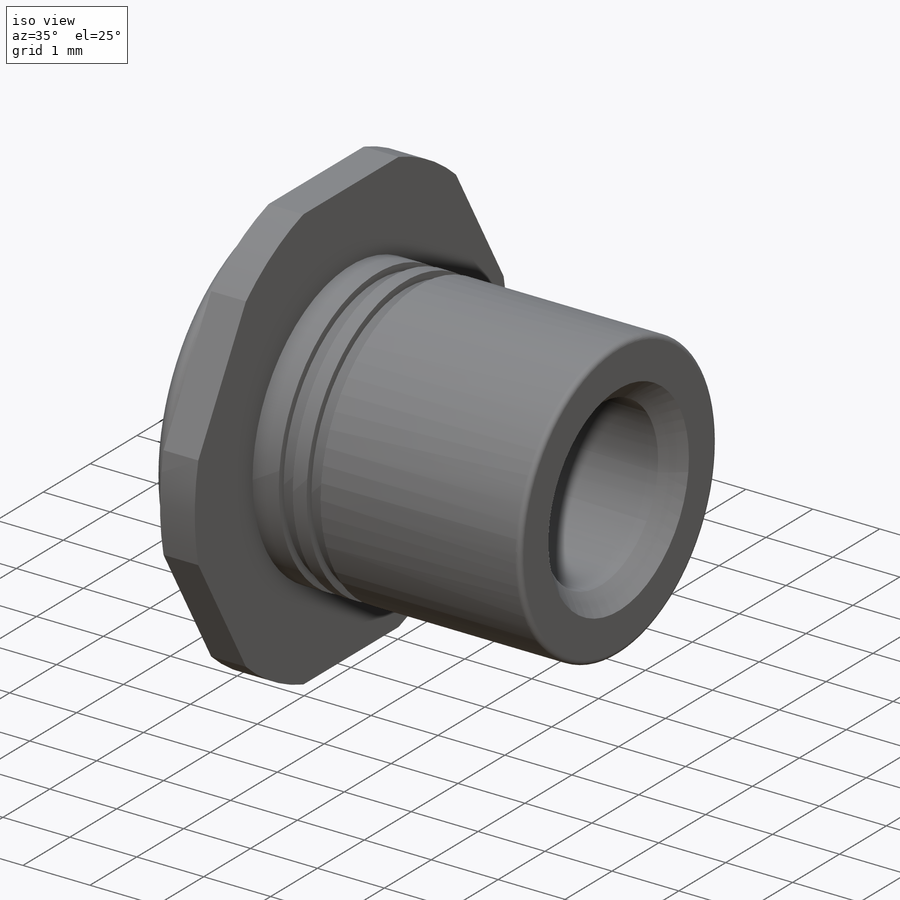
[diagram: iso view]
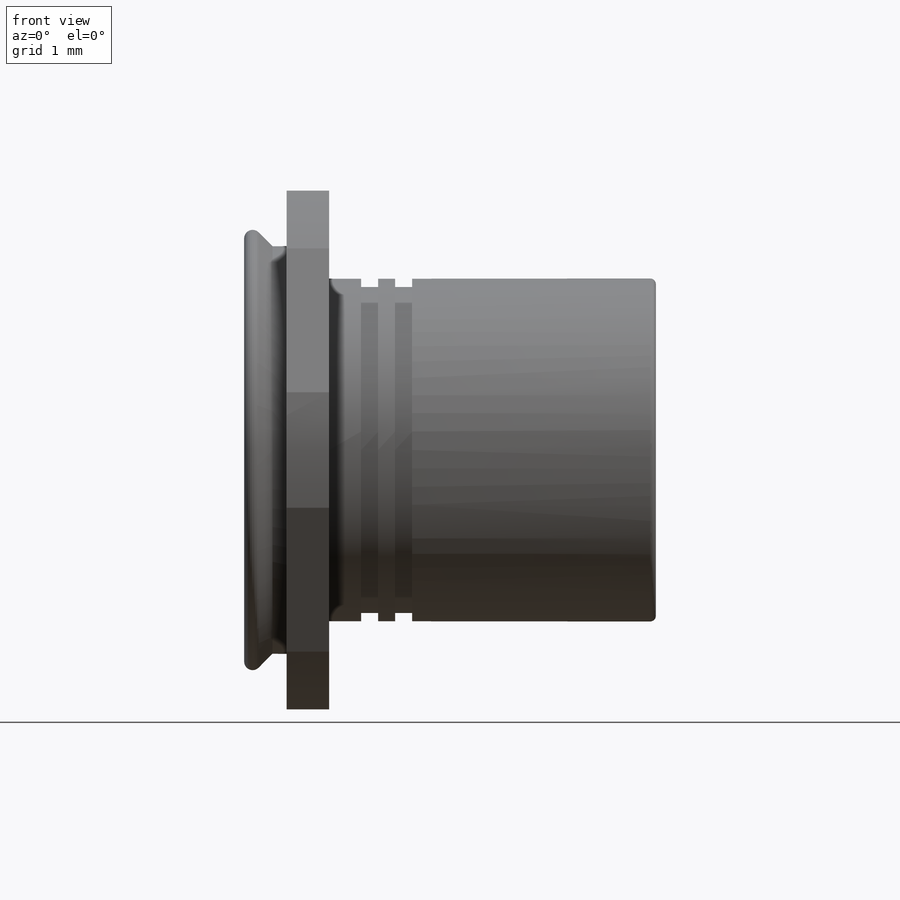
[diagram: front view]
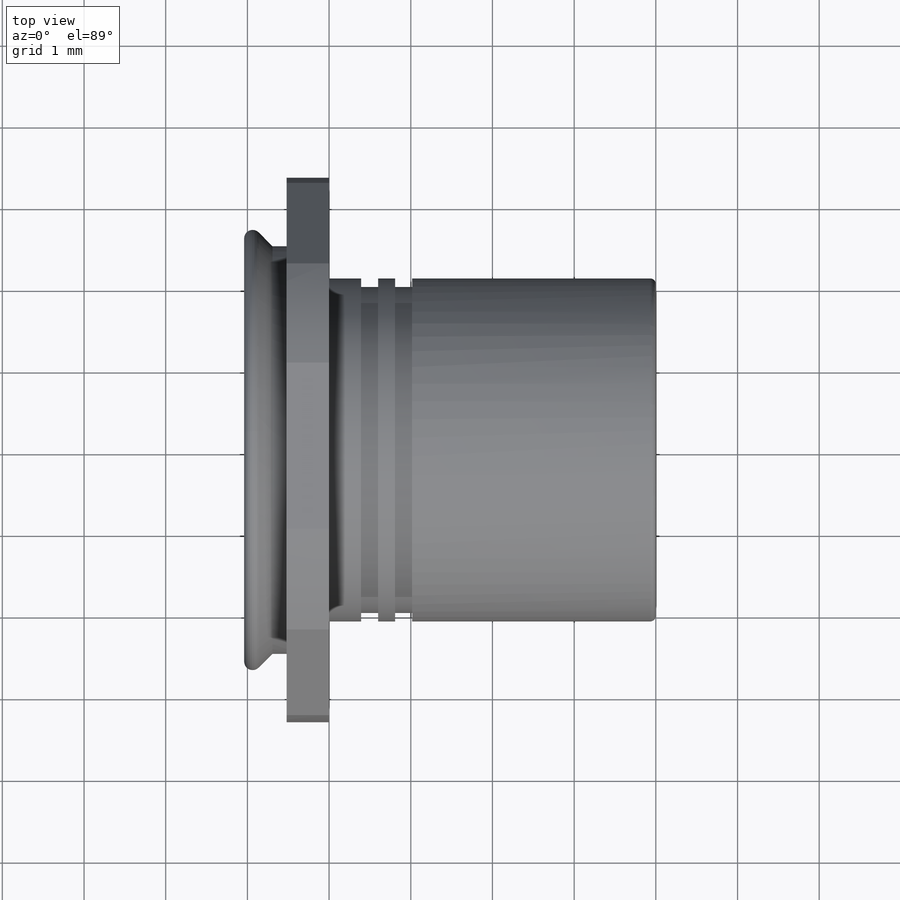
[diagram: top view]
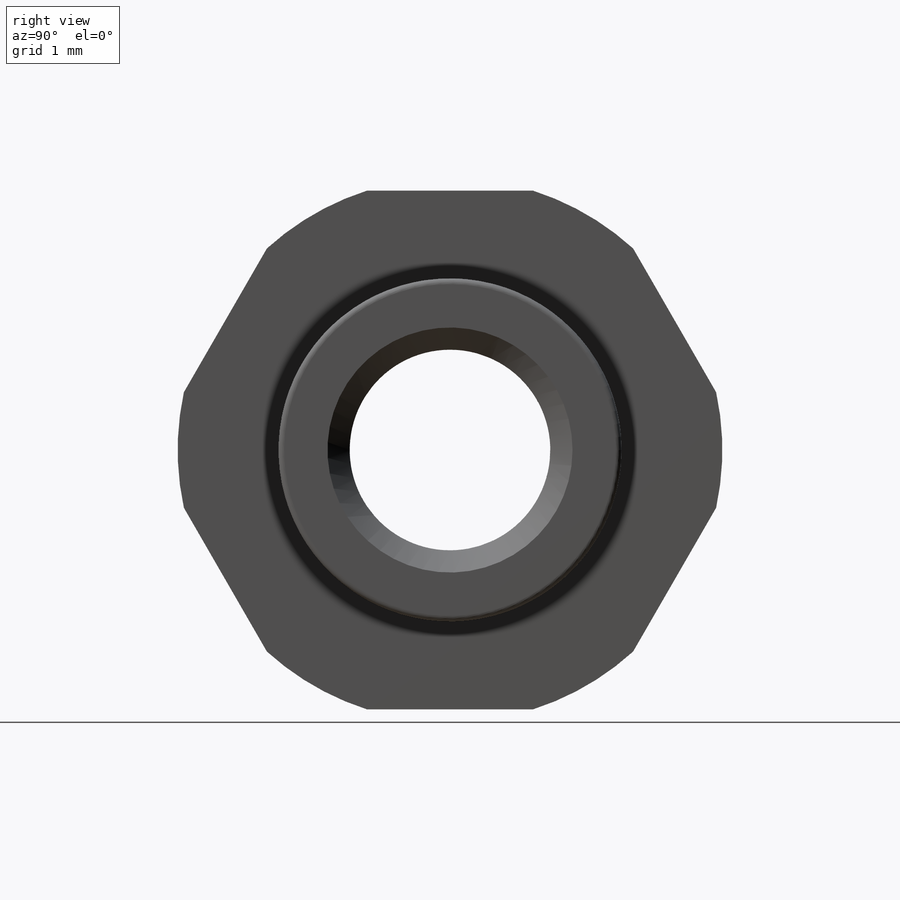
[diagram: right view]
SOLIDWORKS PART (.sldprt)
format: sldprt  version: not decoded by parser v0  size: 259,584 bytes
history: native  units: mm
features: sketch x5, plane x2, revolve x2, material x1, extrude x1, hole x1, chamfer x1, fillet x1 (+13 scaffold rows collapsed)
feature tree (27):
  scaffold x13  (default folders/planes/origin — collapsed)
  material  "Material <not specified>"
  plane  "Plane4"
  sketch  "Sketch1"
  extrude  "Boss-Extrude1"  Depth=0.52mm
  plane  "Plane5"
  sketch  "Sketch2"
  revolve  "Revolve1"  Angle=360deg
  sketch  "Sketch3"
  revolve  "Revolve2"  Angle=360deg
  hole  "M2 Clearance Hole1"  Diameter=2.459mm Depth=5.04mm
  sketch  "Sketch5"
  sketch  "Sketch4"  dims[hole-wizard template sketch: 59 standard entries collapsed; hole parameters kept: c18.Thru Hole Dia.=2.459mm c18.Thru Hole Depth=5.04mm]
  chamfer  "Chamfer1"  Distance=0.2705mm Angle=45deg
  fillet  "Fillet1"  Radius=0.069333mm
decode coverage: 7 of 11 modeling features carry decoded parameters
note: ~ marks probable driven/reference dimensions
note: suppression state not decoded; provenance and decode notes live in map.json
